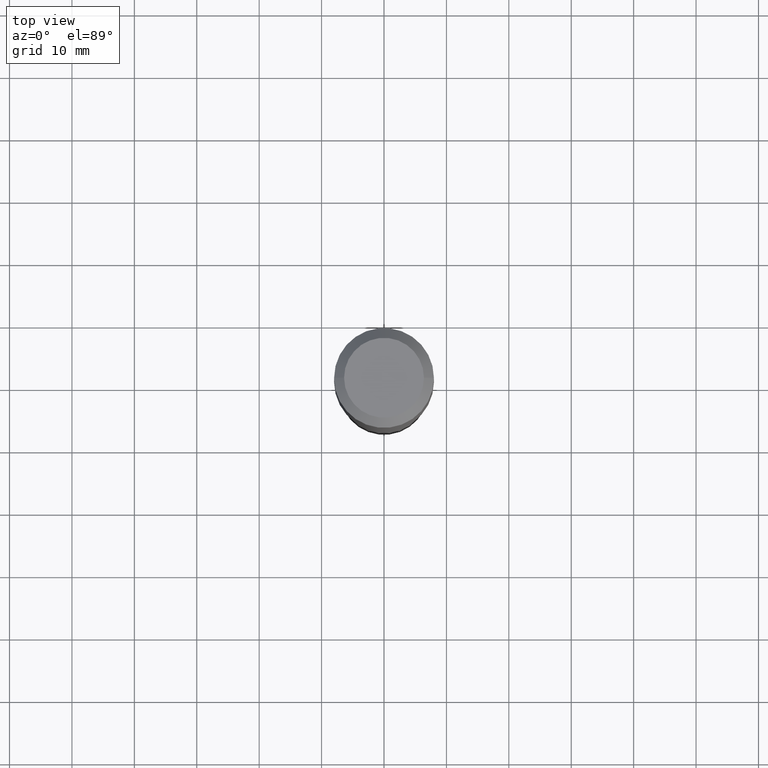
[diagram: clean part render]
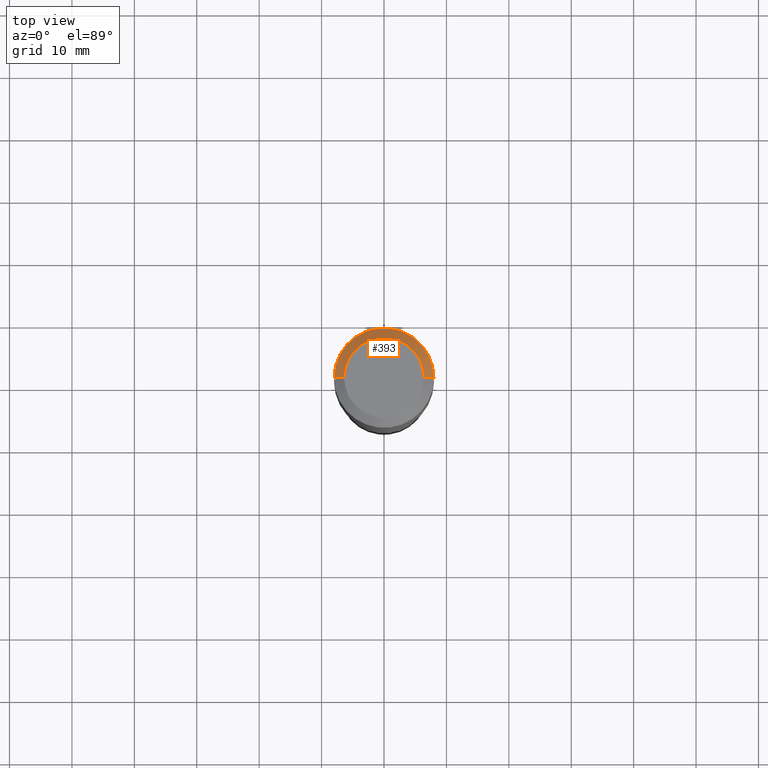
[diagram: same view with one face highlighted and labeled with its STEP entity id]
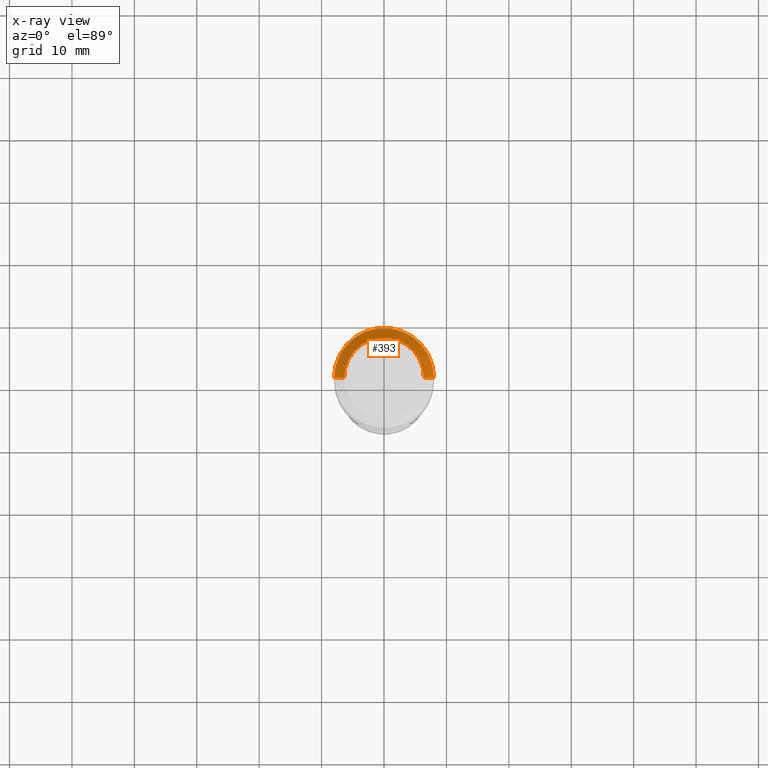
[diagram: x-ray of the same camera — body ghosted, the highlighted face saturated]
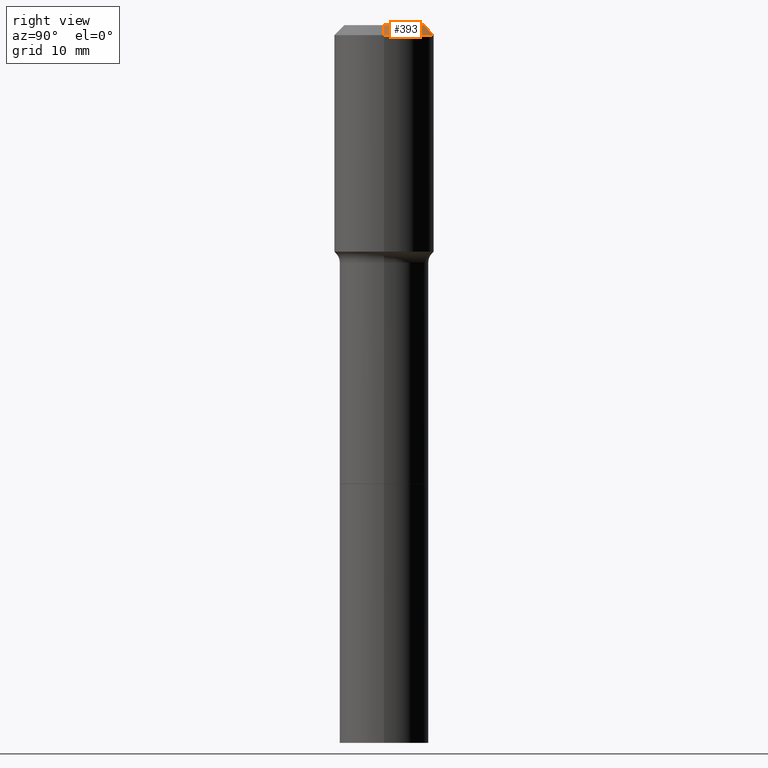
[diagram: same view with one face highlighted and labeled with its STEP entity id]
A machine part, top view. The second image highlights one B-rep face of the part: STEP entity #393.
The next image is the same camera in x-ray: the body ghosted, the highlighted face saturated — about 0% of this face is hidden behind the body in this view.
A second angle (right view) of the same face is appended — the face is thin or edge-on in the first view.
In plain terms, the highlighted conical surface has half-angle 45 deg.
Its self-contained STEP definition (entity closure, byte-faithful):
#5 = AXIS2_PLACEMENT_3D ( 'NONE', #422, #339, #21 ) ;
#8 = EDGE_CURVE ( 'NONE', #120, #469, #272, .T. ) ;
#13 = AXIS2_PLACEMENT_3D ( 'NONE', #140, #345, #225 ) ;
#21 = DIRECTION ( 'NONE',  ( 1.000000000000000000, -6.982962677686266711E-15, 0.000000000000000000 ) ) ;
#30 = EDGE_LOOP ( 'NONE', ( #121, #427, #34, #504 ) ) ;
#34 = ORIENTED_EDGE ( 'NONE', *, *, #232, .T. ) ;
#62 = CARTESIAN_POINT ( 'NONE',  ( 0.3149500000000000632, -2.380642253931875584E-15, -0.06299000000000040678 ) ) ;
#68 = VECTOR ( 'NONE', #267, 39.37007874015748854 ) ;
#119 = EDGE_CURVE ( 'NONE', #347, #120, #303, .T. ) ;
#120 = VERTEX_POINT ( 'NONE', #490 ) ;
#121 = ORIENTED_EDGE ( 'NONE', *, *, #119, .F. ) ;
#140 = CARTESIAN_POINT ( 'NONE',  ( 1.540400801016027380E-30, -2.199284095337311367E-16, -0.06299000000000040678 ) ) ;
#179 = DIRECTION ( 'NONE',  ( -0.7071067811865454633, 2.468850131082235761E-15, -0.7071067811865493491 ) ) ;
#180 = CARTESIAN_POINT ( 'NONE',  ( 0.3149500000000000632, -2.419212504871021303E-15, -0.06299000000000040678 ) ) ;
#225 = DIRECTION ( 'NONE',  ( -1.000000000000000000, 6.982962677686266711E-15, 0.000000000000000000 ) ) ;
#232 = EDGE_CURVE ( 'NONE', #480, #469, #487, .T. ) ;
#239 = CONICAL_SURFACE ( 'NONE', #13, 0.3149500000000000632, 0.7853981633974456145 ) ;
#249 = DIRECTION ( 'NONE',  ( 1.000000000000000000, -6.982962677686266711E-15, 4.876115136096691995E-29 ) ) ;
#267 = DIRECTION ( 'NONE',  ( 0.7071067811865454633, -7.319954787623246579E-15, -0.7071067811865493491 ) ) ;
#272 = LINE ( 'NONE', #461, #387 ) ;
#291 = CARTESIAN_POINT ( 'NONE',  ( 0.2519600000000000173, -2.054606664725195453E-15, 3.855188123729206640E-18 ) ) ;
#302 = CARTESIAN_POINT ( 'NONE',  ( -0.3149500000000000632, -3.666830838863111328E-16, -0.06299000000000040678 ) ) ;
#303 = CIRCLE ( 'NONE', #396, 0.2519600000000000173 ) ;
#338 = FACE_OUTER_BOUND ( 'NONE', #30, .T. ) ;
#339 = DIRECTION ( 'NONE',  ( -2.445468806185136597E-29, 3.491481338843145583E-15, 1.000000000000000000 ) ) ;
#345 = DIRECTION ( 'NONE',  ( 2.445468806185136597E-29, -3.491481338843145583E-15, -1.000000000000000000 ) ) ;
#347 = VERTEX_POINT ( 'NONE', #291 ) ;
#369 = DIRECTION ( 'NONE',  ( -2.445468806185136597E-29, 3.491481338843145583E-15, 1.000000000000000000 ) ) ;
#387 = VECTOR ( 'NONE', #179, 39.37007874015748854 ) ;
#393 = ADVANCED_FACE ( 'NONE', ( #338 ), #239, .T. ) ;
#396 = AXIS2_PLACEMENT_3D ( 'NONE', #493, #369, #249 ) ;
#422 = CARTESIAN_POINT ( 'NONE',  ( 1.540400801016027380E-30, -2.199284095337311367E-16, -0.06299000000000040678 ) ) ;
#427 = ORIENTED_EDGE ( 'NONE', *, *, #473, .T. ) ;
#457 = LINE ( 'NONE', #62, #68 ) ;
#461 = CARTESIAN_POINT ( 'NONE',  ( -0.3149500000000000632, 1.979355685803559227E-15, -0.06299000000000040678 ) ) ;
#469 = VERTEX_POINT ( 'NONE', #302 ) ;
#473 = EDGE_CURVE ( 'NONE', #347, #480, #457, .T. ) ;
#480 = VERTEX_POINT ( 'NONE', #180 ) ;
#487 = CIRCLE ( 'NONE', #5, 0.3149500000000000632 ) ;
#490 = CARTESIAN_POINT ( 'NONE',  ( -0.2519600000000000173, 1.869391481036695680E-15, 3.855188123703182704E-18 ) ) ;
#493 = CARTESIAN_POINT ( 'NONE',  ( -9.427742298522569579E-47, 1.346031739168368629E-32, 3.855188123715871501E-18 ) ) ;
#504 = ORIENTED_EDGE ( 'NONE', *, *, #8, .F. ) ;